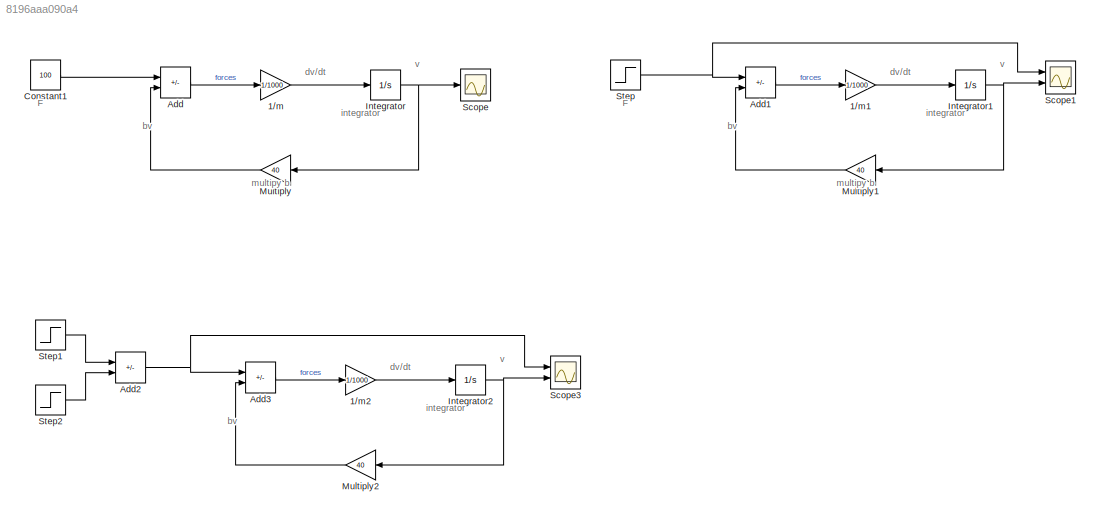
MODEL slx_8196aaa090a4
KIND model
CONFIG AbsTol = auto
CONFIG EnableMultiTasking = off
CONFIG FixedStep = auto
CONFIG MaxStep = auto
CONFIG MinStep = auto
CONFIG RelTol = 1e-3
CONFIG SampleTimeConstraint = Unconstrained
CONFIG SolverName = VariableStepAuto
CONFIG StartTime = 0.0
CONFIG StopTime = 200
BLOCK [Gain] 1//m
  Gain = 1/1000
BLOCK [Gain] 1//m1
  Gain = 1/1000
BLOCK [Gain] 1//m2
  Gain = 1/1000
BLOCK [Sum] Add
  IconShape = rectangular
  Inputs = +-
  Ports = [2, 1]
BLOCK [Sum] Add1
  IconShape = rectangular
  Inputs = +-
  Ports = [2, 1]
BLOCK [Sum] Add2
  IconShape = rectangular
  Inputs = +-
  Ports = [2, 1]
BLOCK [Sum] Add3
  IconShape = rectangular
  Inputs = +-
  Ports = [2, 1]
BLOCK [Constant] Constant1
  Value = 100
BLOCK [Integrator] Integrator
  Ports = [1, 1]
BLOCK [Integrator] Integrator1
  Ports = [1, 1]
BLOCK [Integrator] Integrator2
  Ports = [1, 1]
BLOCK [Gain] Multiply
  Gain = 40
BLOCK [Gain] Multiply1
  Gain = 40
BLOCK [Gain] Multiply2
  Gain = 40
BLOCK [Scope] Scope
  Floating = off
  NumInputPorts = 1
  Ports = [1]
  ScopeSpecificationString = Simulink.scopes.TimeScopeBlockCfg('CurrentConfiguration', extmgr.ConfigurationSet(extmgr.Configuration('Core','General UI',true),extmgr.Configuration('Core','Source UI',true),extmgr.Configuration('Sources','WiredSimulink',true),extmgr.Configuration('Visuals','Time Domain',true,'SerializedDisplays',{struct('MinYLimReal','-0.3124','MaxYLimReal','2.81156','YLabelReal','','MinYLimMag','0.00000','MaxYL...<+1359ch>
BLOCK [Scope] Scope1
  Floating = off
  NumInputPorts = 2
  Ports = [2]
  ScopeSpecificationString = Simulink.scopes.TimeScopeBlockCfg('CurrentConfiguration', extmgr.ConfigurationSet(extmgr.Configuration('Core','General UI',true),extmgr.Configuration('Core','Source UI',true),extmgr.Configuration('Sources','WiredSimulink',true,'DataLoggingVariableName','ScopeData1'),extmgr.Configuration('Visuals','Time Domain',true,'SerializedDisplays',{struct('MinYLimReal','-0.10958','MaxYLimReal','0.70977','YLab...<+1423ch>
BLOCK [Scope] Scope3
  Floating = off
  NumInputPorts = 2
  Ports = [2]
  ScopeSpecificationString = Simulink.scopes.TimeScopeBlockCfg('CurrentConfiguration', extmgr.ConfigurationSet(extmgr.Configuration('Core','General UI',true),extmgr.Configuration('Core','Source UI',true),extmgr.Configuration('Sources','WiredSimulink',true,'DataLoggingVariableName','ScopeData3'),extmgr.Configuration('Visuals','Time Domain',true,'SerializedDisplays',{struct('MinYLimReal','-0.10958','MaxYLimReal','0.70977','YLab...<+1431ch>
BLOCK [Step] Step
  After = 100
  SampleTime = 0
BLOCK [Step] Step1
  After = 50
  SampleTime = 0
  Time = 5
BLOCK [Step] Step2
  After = 50
  SampleTime = 0
  Time = 10
ANNOTATION (root): F
ANNOTATION (root): bv
ANNOTATION (root): dv/dt
ANNOTATION (root): integrator
ANNOTATION (root): multipy b
ANNOTATION (root): v
LINE 1//m1:1 -> Integrator1:1
LINE 1//m2:1 -> Integrator2:1
LINE 1//m:1 -> Integrator:1
LINE Add1:1 -> 1//m1:1
NET Add2:1 -> Add3:1, Scope3:1
LINE Add3:1 -> 1//m2:1
LINE Add:1 -> 1//m:1
LINE Constant1:1 -> Add:1
NET Integrator1:1 -> Multiply1:1, Scope1:2
NET Integrator2:1 -> Multiply2:1, Scope3:2
NET Integrator:1 -> Multiply:1, Scope:1
LINE Multiply1:1 -> Add1:2
LINE Multiply2:1 -> Add3:2
LINE Multiply:1 -> Add:2
LINE Step1:1 -> Add2:1
LINE Step2:1 -> Add2:2
NET Step:1 -> Add1:1, Scope1:1
note: NET lines group one-source signal fan-out (src -> all destinations, sorted); 1:1 wires keep LINE
